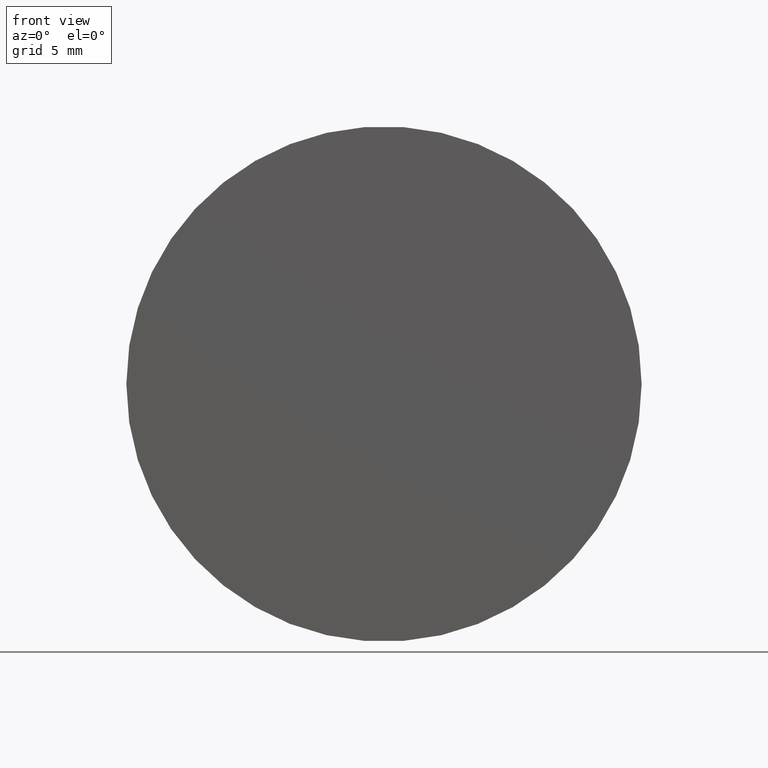
[diagram: clean part render]
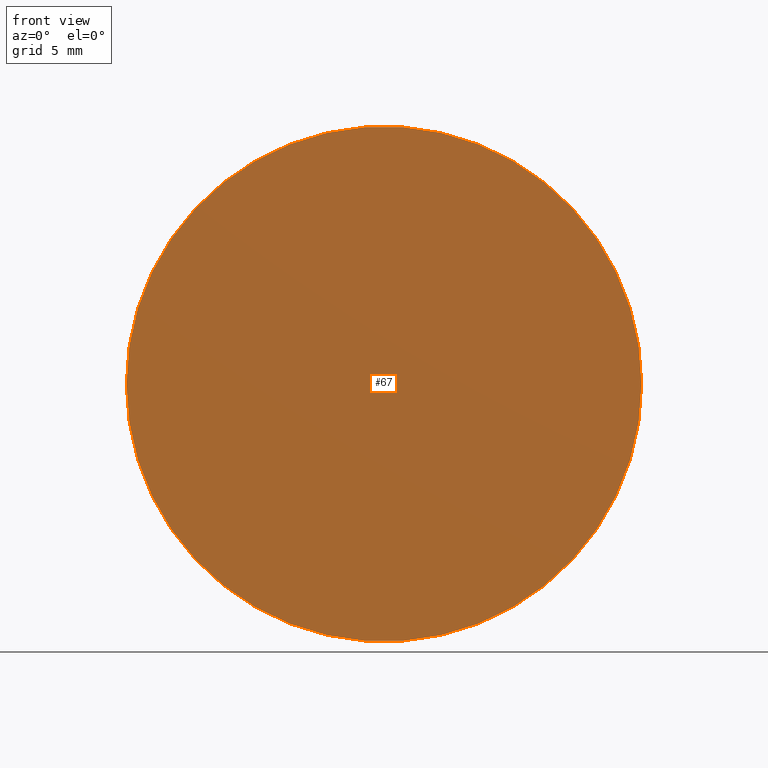
[diagram: same view with one face highlighted and labeled with its STEP entity id]
A machine part, front view. The second image highlights one B-rep face of the part: STEP entity #67.
In plain terms, the highlighted planar face has unit normal (0, 1, -0).
Its self-contained STEP definition (entity closure, byte-faithful):
#9 = PLANE ( 'NONE',  #120 ) ;
#32 = CARTESIAN_POINT ( 'NONE',  ( -2.407412430484044816E-32, -1.734723475976807094E-15, 0.000000000000000000 ) ) ;
#37 = DIRECTION ( 'NONE',  ( 1.319291633741883713E-17, 1.000000000000000000, -0.000000000000000000 ) ) ;
#41 = AXIS2_PLACEMENT_3D ( 'NONE', #32, #37, #163 ) ;
#46 = ORIENTED_EDGE ( 'NONE', *, *, #121, .F. ) ;
#56 = CARTESIAN_POINT ( 'NONE',  ( 15.00000000000000000, -1.932617221038089619E-15, 1.836970198721029983E-15 ) ) ;
#65 = EDGE_LOOP ( 'NONE', ( #46, #88 ) ) ;
#67 = ADVANCED_FACE ( 'NONE', ( #175 ), #9, .F. ) ;
#68 = DIRECTION ( 'NONE',  ( 1.319291633741883713E-17, 1.000000000000000000, -0.000000000000000000 ) ) ;
#72 = CIRCLE ( 'NONE', #41, 15.00000000000000000 ) ;
#76 = VERTEX_POINT ( 'NONE', #56 ) ;
#81 = DIRECTION ( 'NONE',  ( -1.000000000000000000, 1.319291633741883713E-17, 0.000000000000000000 ) ) ;
#85 = EDGE_CURVE ( 'NONE', #76, #188, #86, .T. ) ;
#86 = CIRCLE ( 'NONE', #171, 15.00000000000000000 ) ;
#88 = ORIENTED_EDGE ( 'NONE', *, *, #85, .F. ) ;
#90 = CARTESIAN_POINT ( 'NONE',  ( -2.407412430484044816E-32, -1.734723475976807094E-15, 0.000000000000000000 ) ) ;
#110 = DIRECTION ( 'NONE',  ( -1.000000000000000000, 1.319291633741884329E-17, 0.000000000000000000 ) ) ;
#120 = AXIS2_PLACEMENT_3D ( 'NONE', #156, #141, #81 ) ;
#121 = EDGE_CURVE ( 'NONE', #188, #76, #72, .T. ) ;
#141 = DIRECTION ( 'NONE',  ( 1.319291633741883713E-17, 1.000000000000000000, -0.000000000000000000 ) ) ;
#156 = CARTESIAN_POINT ( 'NONE',  ( -1.342289488417509649E-32, -1.017431971891156057E-15, 0.000000000000000000 ) ) ;
#162 = CARTESIAN_POINT ( 'NONE',  ( -15.00000000000000000, -1.536829730915524373E-15, 0.000000000000000000 ) ) ;
#163 = DIRECTION ( 'NONE',  ( -1.000000000000000000, 1.319291633741884329E-17, 0.000000000000000000 ) ) ;
#171 = AXIS2_PLACEMENT_3D ( 'NONE', #90, #68, #110 ) ;
#175 = FACE_OUTER_BOUND ( 'NONE', #65, .T. ) ;
#188 = VERTEX_POINT ( 'NONE', #162 ) ;